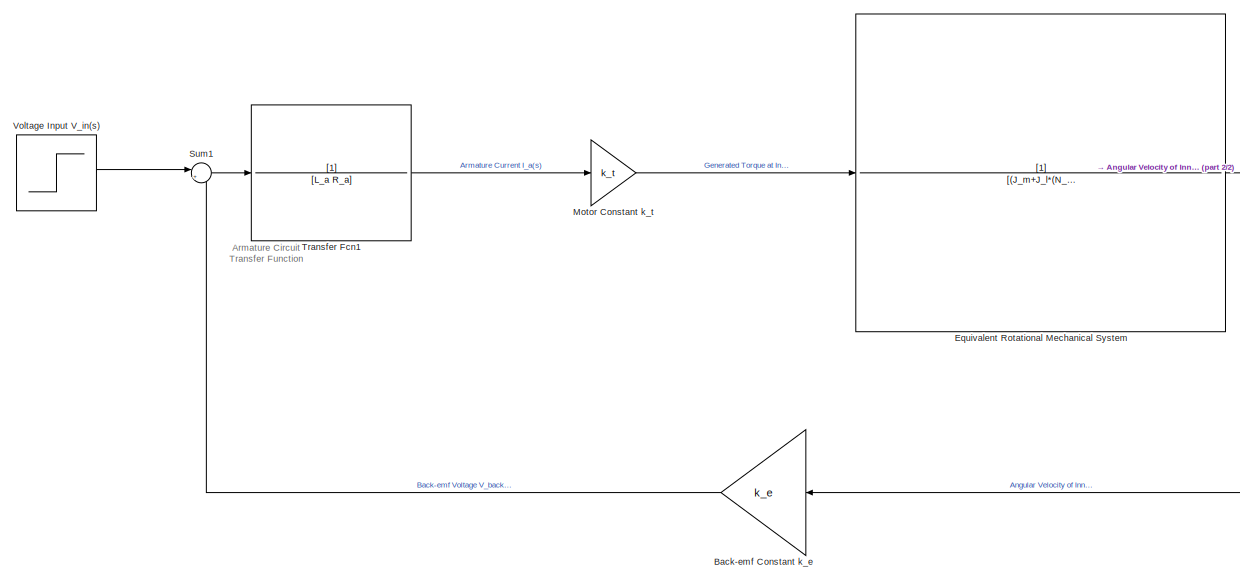
[diagram: root canvas - part 1/2, left side, full height]
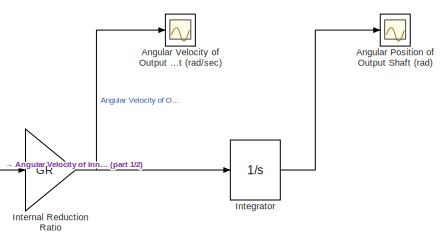
[diagram: root canvas - part 2/2, top right region]
MODEL slx_29a29fba1814
KIND model
CONFIG AbsTol = auto
CONFIG EnableMultiTasking = off
CONFIG FixedStep = auto
CONFIG MaxStep = auto
CONFIG MinStep = auto
CONFIG RelTol = 1e-3
CONFIG SampleTimeConstraint = Unconstrained
CONFIG Solver = VariableStepAuto
CONFIG SolverName = VariableStepAuto
CONFIG StartTime = 0.0
CONFIG StopTime = 100
BLOCK [Scope] Angular Position of Output Shaft (rad)
  Floating = off
  NumInputPorts = 1
  Ports = [1]
  ScopeSpecificationString = Simulink.scopes.TimeScopeBlockCfg('CurrentConfiguration', extmgr.ConfigurationSet(extmgr.Configuration('Core','General UI',true),extmgr.Configuration('Core','Source UI',true),extmgr.Configuration('Sources','WiredSimulink',true,'DataLoggingVariableName','ScopeData1'),extmgr.Configuration('Visuals','Time Domain',true,'SerializedDisplays',{struct('MinYLimReal','-4.40961','MaxYLimReal','39.68645','YLa...<+1402ch>
BLOCK [Scope] Angular Velocity of Output Shaft (rad//sec)
  Floating = off
  NumInputPorts = 1
  Ports = [1]
  ScopeSpecificationString = Simulink.scopes.TimeScopeBlockCfg('CurrentConfiguration', extmgr.ConfigurationSet(extmgr.Configuration('Core','General UI',true),extmgr.Configuration('Core','Source UI',true),extmgr.Configuration('Sources','WiredSimulink',true,'DataLoggingVariableName','ScopeData1'),extmgr.Configuration('Visuals','Time Domain',true,'SerializedDisplays',{struct('MinYLimReal','-0.04411','MaxYLimReal','0.397','YLabel...<+1493ch>
BLOCK [Gain] Back-emf Constant k_e
  Gain = k_e
  OutDataTypeStr = Inherit: Inherit via internal rule
  ParamDataTypeStr = Inherit: Inherit via internal rule
  SaturateOnIntegerOverflow = off
BLOCK [TransferFcn] Equivalent Rotational Mechanical System
  Denominator = [(J_m+J_l*(N_m/N_l/19)^2) (D_m+D_d*(N_m/N_d/19)^2)]
BLOCK [Integrator] Integrator
  Ports = [1, 1]
BLOCK [Gain] Internal Reduction Ratio
  Gain = GR
  OutDataTypeStr = Inherit: Inherit via internal rule
  ParamDataTypeStr = Inherit: Inherit via internal rule
  SaturateOnIntegerOverflow = off
BLOCK [Gain] Motor Constant k_t
  Gain = k_t
  OutDataTypeStr = Inherit: Inherit via internal rule
  ParamDataTypeStr = Inherit: Inherit via internal rule
  SaturateOnIntegerOverflow = off
BLOCK [Sum] Sum1
  IconShape = round
  InputSameDT = off
  Inputs = |+-
  OutDataTypeStr = Inherit: Inherit via internal rule
  Ports = [2, 1]
  SaturateOnIntegerOverflow = off
BLOCK [TransferFcn] Transfer Fcn1
  Denominator = [L_a R_a]
BLOCK [Step] Voltage Input V_in(s)
  After = 12
  Before = 12
  SampleTime = 0
  Time = 0
ANNOTATION (root): Armature Circuit Transfer Function
LINE Back-emf Constant k_e:1 -> Sum1:2
NET Equivalent Rotational Mechanical System:1 -> Back-emf Constant k_e:1, Internal Reduction Ratio:1
LINE Integrator:1 -> Angular Position of Output Shaft (rad):1
NET Internal Reduction Ratio:1 -> Angular Velocity of Output Shaft (rad//sec):1, Integrator:1
LINE Motor Constant k_t:1 -> Equivalent Rotational Mechanical System:1
LINE Sum1:1 -> Transfer Fcn1:1
LINE Transfer Fcn1:1 -> Motor Constant k_t:1
LINE Voltage Input V_in(s):1 -> Sum1:1
note: NET lines group one-source signal fan-out (src -> all destinations, sorted); 1:1 wires keep LINE
